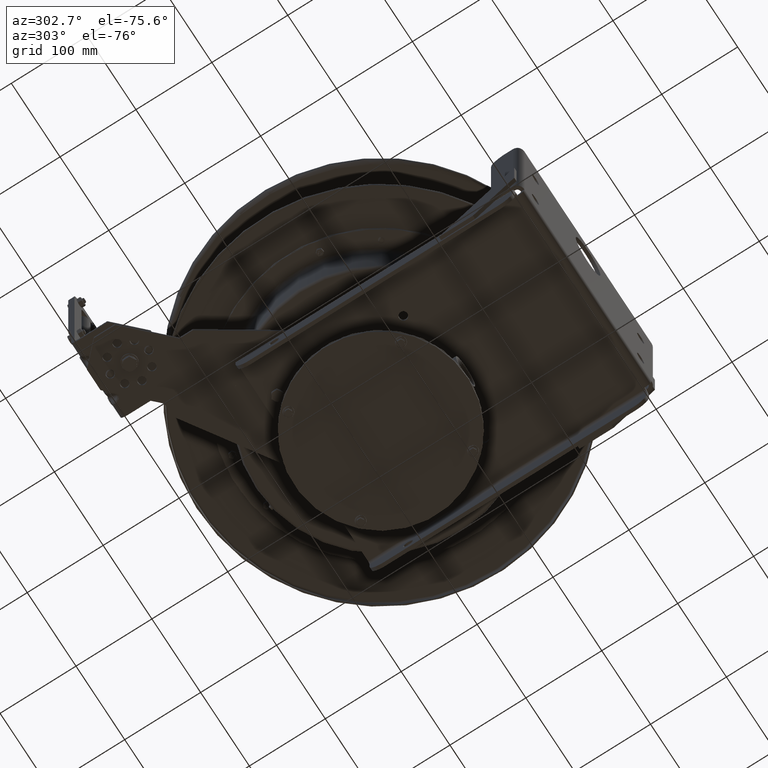
[diagram: clean part render]
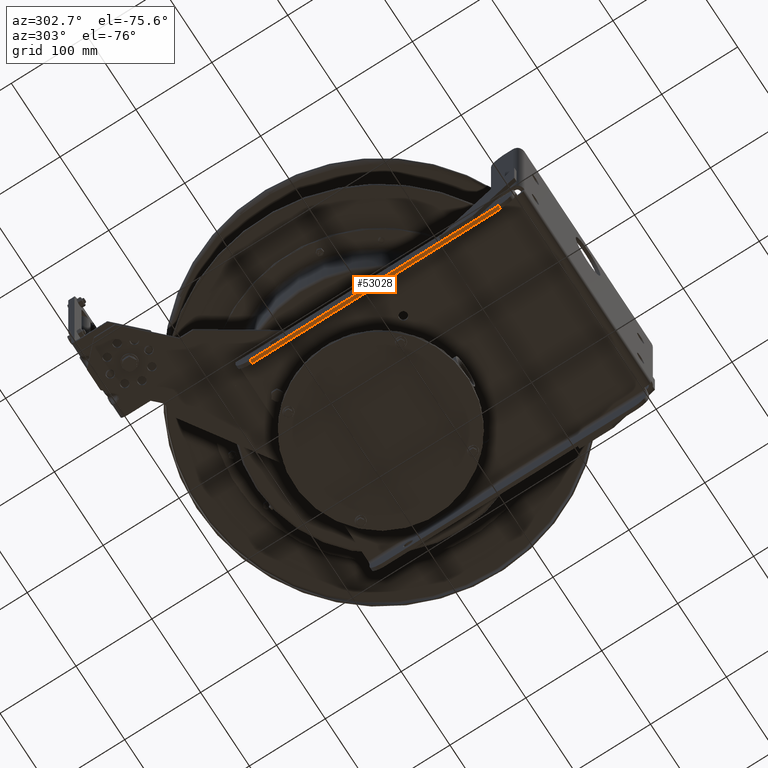
[diagram: same view with one face highlighted and labeled with its STEP entity id]
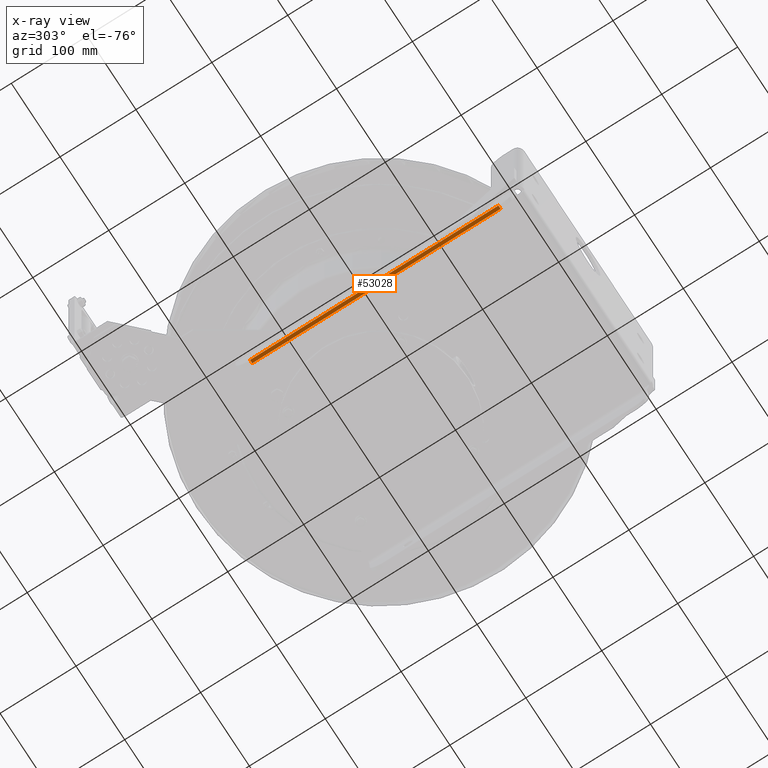
[diagram: x-ray of the same camera — body ghosted, the highlighted face saturated]
A machine part, auxiliary view. The second image highlights one B-rep face of the part: STEP entity #53028.
The next image is the same camera in x-ray: the body ghosted, the highlighted face saturated — about 0% of this face is hidden behind the body in this view.
In plain terms, the highlighted planar face has unit normal (0, -0, -1).
Its self-contained STEP definition (entity closure, byte-faithful):
#2937=PLANE('',#56724);
#4329=LINE('',#78928,#6747);
#4330=LINE('',#78931,#6748);
#4331=LINE('',#78933,#6749);
#4332=LINE('',#78934,#6750);
#6747=VECTOR('',#63386,0.179);
#6748=VECTOR('',#63389,12.883);
#6749=VECTOR('',#63390,0.179);
#6750=VECTOR('',#63391,12.883);
#10599=FACE_OUTER_BOUND('',#14095,.T.);
#14095=EDGE_LOOP('',(#34145,#34146,#34147,#34148));
#22109=VERTEX_POINT('',#78921);
#22112=VERTEX_POINT('',#78926);
#22113=VERTEX_POINT('',#78930);
#22114=VERTEX_POINT('',#78932);
#26972=EDGE_CURVE('',#22112,#22109,#4329,.T.);
#26973=EDGE_CURVE('',#22113,#22112,#4330,.T.);
#26974=EDGE_CURVE('',#22114,#22113,#4331,.T.);
#26975=EDGE_CURVE('',#22114,#22109,#4332,.T.);
#34145=ORIENTED_EDGE('',*,*,#26972,.F.);
#34146=ORIENTED_EDGE('',*,*,#26973,.F.);
#34147=ORIENTED_EDGE('',*,*,#26974,.F.);
#34148=ORIENTED_EDGE('',*,*,#26975,.T.);
#53028=ADVANCED_FACE('',(#10599),#2937,.T.);
#56724=AXIS2_PLACEMENT_3D('',#78929,#63387,#63388);
#63386=DIRECTION('',(-1.,-6.03639979774285E-17,-1.71512449944288E-15));
#63387=DIRECTION('center_axis',(1.71512449944288E-15,-6.03639979774284E-17,
-1.));
#63388=DIRECTION('ref_axis',(-1.,0.,-1.69197988952874E-15));
#63389=DIRECTION('',(-6.03639979774284E-17,1.,-6.03639979774285E-17));
#63390=DIRECTION('',(1.,6.03639979774285E-17,1.71512449944288E-15));
#63391=DIRECTION('',(-6.03639979774284E-17,1.,-6.03639979774285E-17));
#78921=CARTESIAN_POINT('',(-11.,14.,-1.321));
#78926=CARTESIAN_POINT('',(-10.821,14.,-1.321));
#78928=CARTESIAN_POINT('',(-10.821,14.,-1.321));
#78929=CARTESIAN_POINT('Origin',(-10.821,0.366999999999999,-1.321));
#78930=CARTESIAN_POINT('',(-10.821,1.117,-1.321));
#78931=CARTESIAN_POINT('',(-10.821,0.366999999999999,-1.321));
#78932=CARTESIAN_POINT('',(-11.,1.117,-1.321));
#78933=CARTESIAN_POINT('',(-10.821,1.117,-1.321));
#78934=CARTESIAN_POINT('',(-11.,0.366999999999999,-1.321));